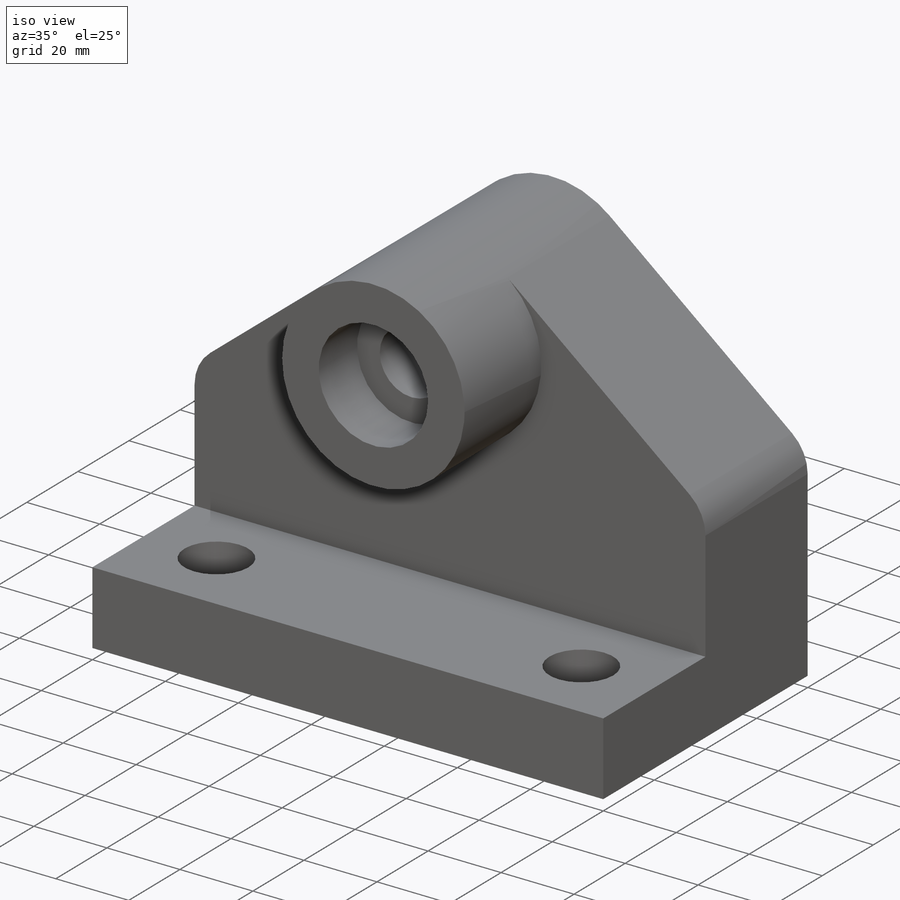
[diagram: iso view]
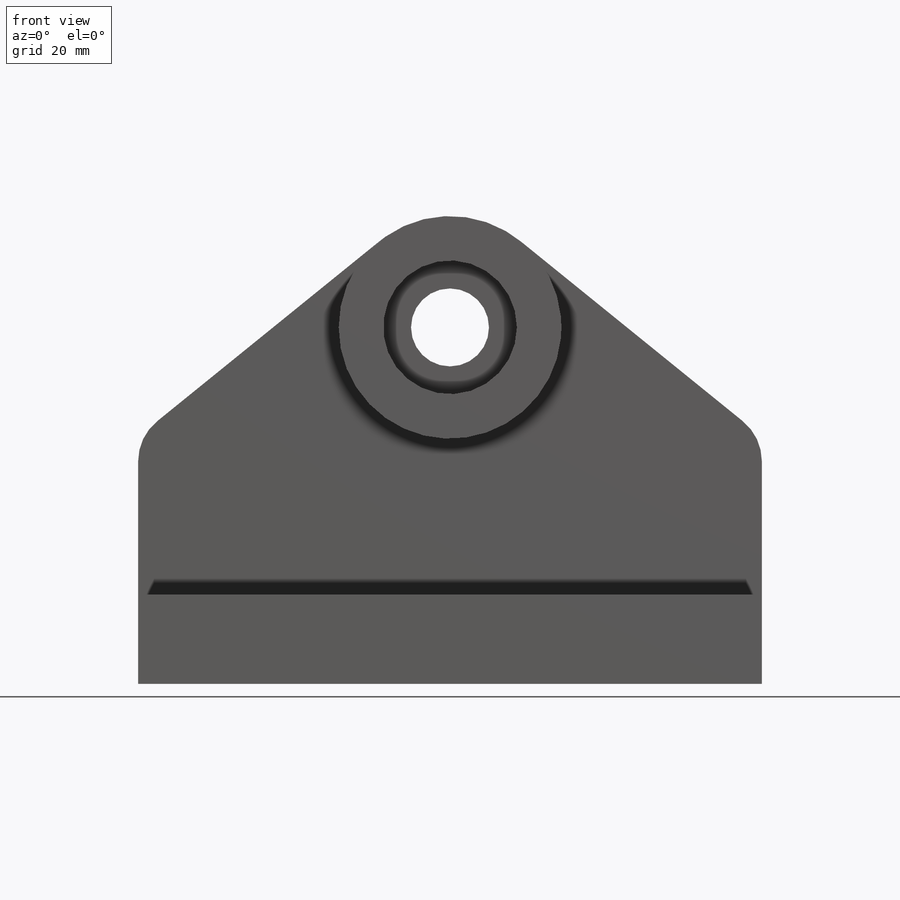
[diagram: front view]
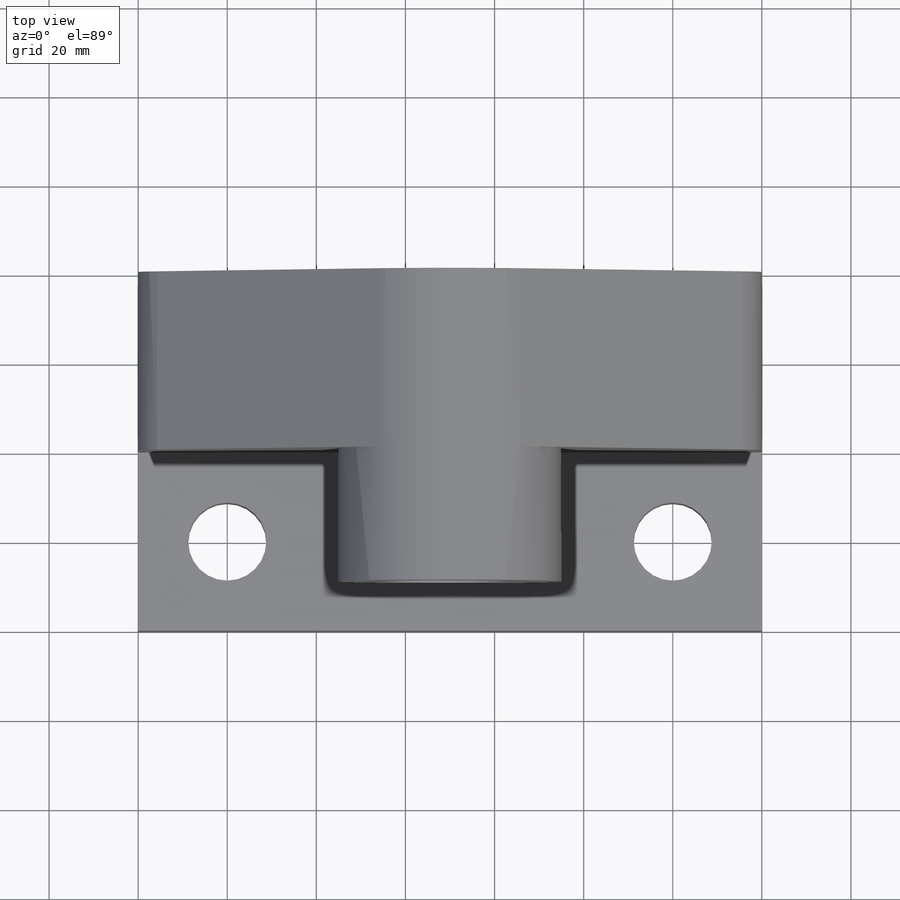
[diagram: top view]
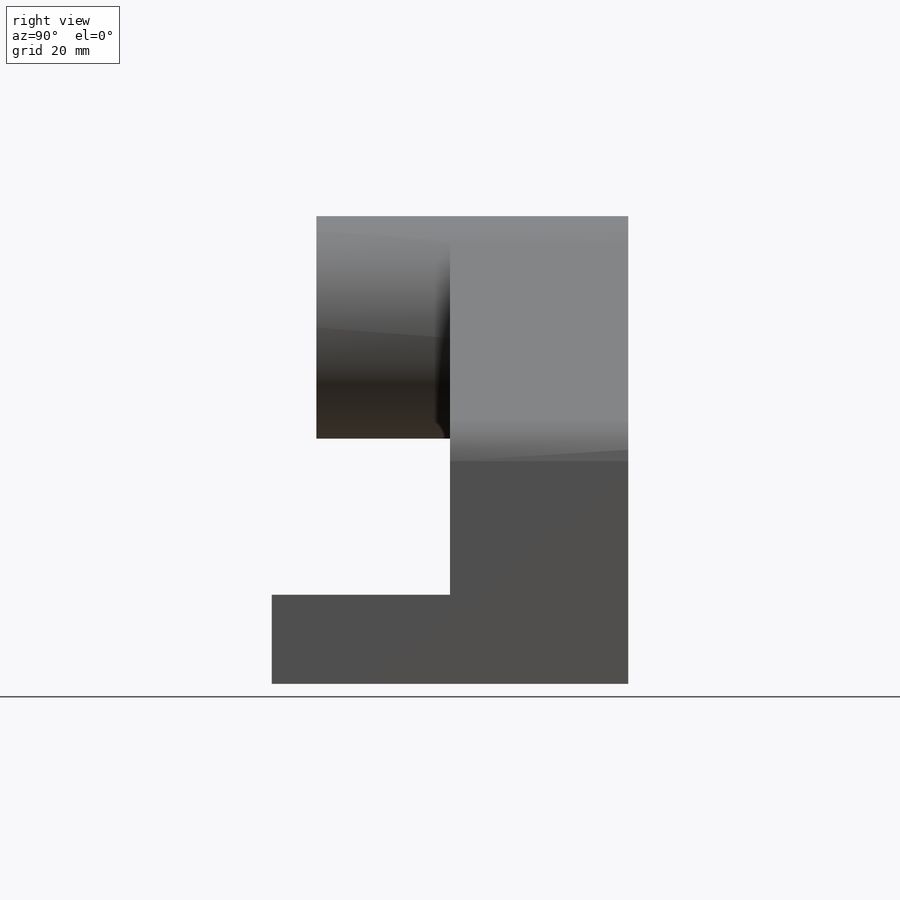
[diagram: right view]
SOLIDWORKS PART (.sldprt)
format: sldprt  version: not decoded by parser v0  size: 375,296 bytes
history: native  units: mm
features: sketch x17, thread x5, extrude x4, cut_extrude x3, hole x3, material x1, plane x1 (+13 scaffold rows collapsed)
feature tree (47):
  scaffold x13  (default folders/planes/origin — collapsed)
  material  "Material <not specified>"
  sketch  "Sketch1"  dims[D4=50.0mm D1=140.0mm D2=50.0mm D3=80.0mm D5=70.0mm D6=50.0mm D7=50.0mm D8=50.0mm]
  extrude  "Boss-Extrude1"  Depth=80mm
  sketch  "Sketch2"  dims[D1=50.0mm]
  extrude  "Boss-Extrude2"  Depth=40mm
  sketch  "Sketch3"  dims[D1=~67.482995mm D2=~38.127818mm D3=~38.127818mm D4=~62.878697mm]
  cut_extrude  "Cut-Extrude2"  Depth=40mm
  sketch  "Sketch4"  dims[D1=20.0mm D2=20.0mm D3=20.0mm D4=20.0mm]
  sketch  "Sketch6"  dims[D1=20.0mm D2=20.0mm D3=20.0mm D4=20.0mm]
  hole  "M20 Tapped Hole2"  Diameter=17.5mm Depth=30mm
  sketch  "3DSketch2"
  sketch  "Sketch7"  dims[hole-wizard template sketch: 47 standard entries collapsed; hole parameters kept: c15.Tap Drill Depth=30.0mm c15.D3=~14.816244mm c15.Drill Angle=118.0deg]
  thread  "Hole Thread3"  Diameter=30mm  [1 undecoded]
  thread  "Hole Thread4"  Diameter=30mm  [1 undecoded]
  plane  "Plane1"  Offset=20mm
  sketch  "Sketch9"  dims[D1=40.0mm]
  cut_extrude  "Cut-Extrude3"  Depth=110mm
  sketch  "Sketch12"  dims[D1=20.0mm D2=20.0mm D3=20.0mm D4=20.0mm]
  hole  "M20 Tapped Hole3"  Diameter=17.5mm Depth=37.5mm
  sketch  "3DSketch3"
  sketch  "Sketch13"  dims[hole-wizard template sketch: 47 standard entries collapsed; hole parameters kept: c15.Tap Drill Depth=37.5mm c15.D3=~14.816244mm c15.Drill Angle=118.0deg]
  thread  "Hole Thread5"  Diameter=20mm  [1 undecoded]
  thread  "Hole Thread6"  Diameter=20mm  [1 undecoded]
  sketch  "Sketch14"  dims[D1=50.0mm D2=30.0mm]
  extrude  "Boss-Extrude3"  Depth=30mm
  sketch  "Sketch15"  dims[D1=30.0mm]
  extrude  "Boss-Extrude4"  Depth=30mm
  sketch  "Sketch16"  dims[D1=30.0mm]
  cut_extrude  "Cut-Extrude4"  Depth=15mm
  sketch  "Sketch17"
  hole  "M20 Tapped Hole4"  Diameter=17.5mm Depth=60mm
  sketch  "3DSketch5"
  sketch  "Sketch19"  dims[hole-wizard template sketch: 47 standard entries collapsed; hole parameters kept: c15.Tap Drill Depth=60.0mm c15.D3=~14.816244mm c15.Drill Angle=118.0deg]
  thread  "Hole Thread7"  Diameter=55mm  [1 undecoded]
decode coverage: 28 of 32 modeling features carry decoded parameters
note: ~ marks probable driven/reference dimensions
note: 5 parameter values undecoded
note: suppression state not decoded; provenance and decode notes live in map.json
